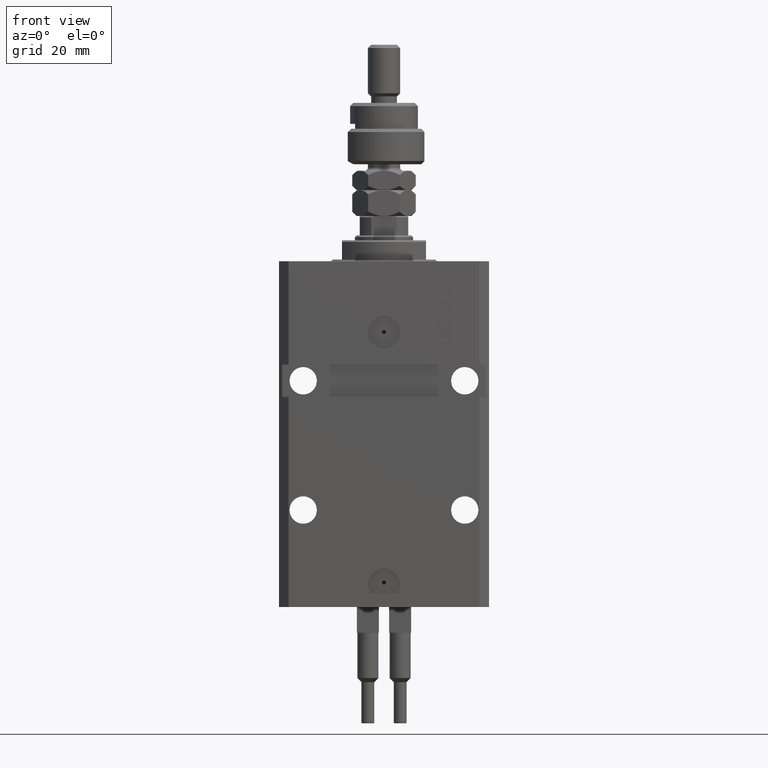
[diagram: clean part render]
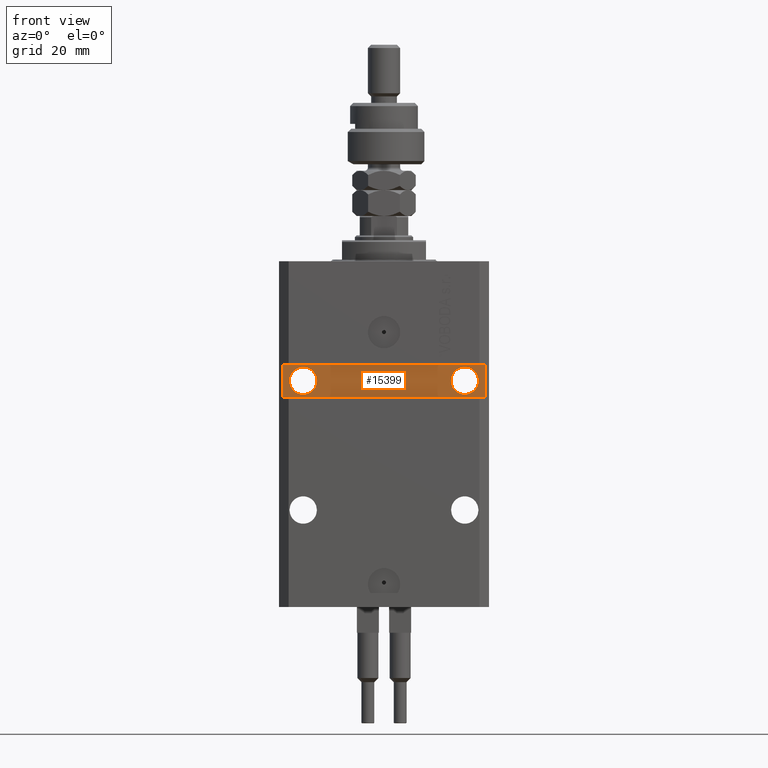
[diagram: same view with one face highlighted and labeled with its STEP entity id]
A machine part, front view. The second image highlights one B-rep face of the part: STEP entity #15399.
In plain terms, the highlighted planar face has unit normal (0, -1, 0).
Its self-contained STEP definition (entity closure, byte-faithful):
#304 = DIRECTION ( 'NONE',  ( -1.000000000000000000, -1.067522139062765303E-16, 1.067522139062765303E-16 ) ) ;
#1800 = EDGE_LOOP ( 'NONE', ( #17327, #4414, #46609, #29653 ) ) ;
#1856 = EDGE_LOOP ( 'NONE', ( #34884, #3573 ) ) ;
#1887 = CIRCLE ( 'NONE', #44165, 4.249999999993782751 ) ;
#3161 = CARTESIAN_POINT ( 'NONE',  ( -24.99999999999999289, -20.49999999999950262, -37.00000000000000000 ) ) ;
#3217 = FACE_OUTER_BOUND ( 'NONE', #1800, .T. ) ;
#3573 = ORIENTED_EDGE ( 'NONE', *, *, #8953, .F. ) ;
#4414 = ORIENTED_EDGE ( 'NONE', *, *, #47177, .F. ) ;
#5064 = VECTOR ( 'NONE', #304, 1000.000000000000000 ) ;
#5479 = DIRECTION ( 'NONE',  ( 1.000000000000000000, 1.067522139062765303E-16, 1.067522139062765303E-16 ) ) ;
#5668 = CIRCLE ( 'NONE', #28948, 4.249999999989050536 ) ;
#6777 = DIRECTION ( 'NONE',  ( 1.394545208792185644E-16, -1.000000000000000000, 1.232595164407830946E-32 ) ) ;
#7729 = VECTOR ( 'NONE', #14689, 1000.000000000000000 ) ;
#8891 = VECTOR ( 'NONE', #5479, 1000.000000000000000 ) ;
#8953 = EDGE_CURVE ( 'NONE', #21402, #10477, #21487, .T. ) ;
#9315 = CARTESIAN_POINT ( 'NONE',  ( -29.24999999999377920, -20.49999999999950262, -37.00000000000000000 ) ) ;
#9401 = VECTOR ( 'NONE', #46855, 1000.000000000000000 ) ;
#9983 = VERTEX_POINT ( 'NONE', #9986 ) ;
#9986 = CARTESIAN_POINT ( 'NONE',  ( 31.49999999999650413, -20.49999999999949196, -41.99999999999998579 ) ) ;
#10406 = CARTESIAN_POINT ( 'NONE',  ( 25.00000000000000711, -20.49999999999949551, -36.99999999999999289 ) ) ;
#10477 = VERTEX_POINT ( 'NONE', #33008 ) ;
#10516 = VERTEX_POINT ( 'NONE', #47184 ) ;
#12264 = DIRECTION ( 'NONE',  ( 1.101411730780568590E-16, -1.000000000000000000, 0.000000000000000000 ) ) ;
#12690 = AXIS2_PLACEMENT_3D ( 'NONE', #10406, #6777, #30677 ) ;
#13255 = LINE ( 'NONE', #40802, #5064 ) ;
#14603 = DIRECTION ( 'NONE',  ( 1.000000000000000000, 0.000000000000000000, 0.000000000000000000 ) ) ;
#14689 = DIRECTION ( 'NONE',  ( 0.000000000000000000, 0.000000000000000000, 1.000000000000000000 ) ) ;
#15176 = FACE_BOUND ( 'NONE', #1856, .T. ) ;
#15399 = ADVANCED_FACE ( 'NONE', ( #19842, #15176, #3217 ), #35684, .T. ) ;
#15828 = EDGE_CURVE ( 'NONE', #10516, #18350, #13255, .T. ) ;
#17327 = ORIENTED_EDGE ( 'NONE', *, *, #15828, .T. ) ;
#18350 = VERTEX_POINT ( 'NONE', #39751 ) ;
#19617 = LINE ( 'NONE', #50283, #7729 ) ;
#19842 = FACE_BOUND ( 'NONE', #29097, .T. ) ;
#20617 = EDGE_CURVE ( 'NONE', #10516, #9983, #26603, .T. ) ;
#20889 = CARTESIAN_POINT ( 'NONE',  ( 20.75000000001095657, -20.49999999999949551, -36.99999999999999289 ) ) ;
#21402 = VERTEX_POINT ( 'NONE', #9315 ) ;
#21487 = CIRCLE ( 'NONE', #50533, 4.249999999993782751 ) ;
#23413 = DIRECTION ( 'NONE',  ( 1.101411730780568590E-16, -1.000000000000000000, 0.000000000000000000 ) ) ;
#24710 = CARTESIAN_POINT ( 'NONE',  ( -32.49999999999650413, -20.49999999999949907, -41.99999999999999289 ) ) ;
#25974 = VERTEX_POINT ( 'NONE', #20889 ) ;
#26603 = LINE ( 'NONE', #41939, #9401 ) ;
#27116 = CARTESIAN_POINT ( 'NONE',  ( 2.166708070385810581E-15, -20.49999999999949907, 0.000000000000000000 ) ) ;
#27635 = DIRECTION ( 'NONE',  ( 1.067522139062765303E-16, -1.000000000000000000, 0.000000000000000000 ) ) ;
#28948 = AXIS2_PLACEMENT_3D ( 'NONE', #44004, #51035, #39857 ) ;
#29097 = EDGE_LOOP ( 'NONE', ( #41478, #50320 ) ) ;
#29653 = ORIENTED_EDGE ( 'NONE', *, *, #20617, .F. ) ;
#30677 = DIRECTION ( 'NONE',  ( 1.000000000000000000, 0.000000000000000000, 0.000000000000000000 ) ) ;
#30756 = EDGE_CURVE ( 'NONE', #48823, #9983, #36671, .T. ) ;
#30977 = CIRCLE ( 'NONE', #12690, 4.249999999989050536 ) ;
#32534 = CARTESIAN_POINT ( 'NONE',  ( -24.99999999999999289, -20.49999999999950262, -37.00000000000000000 ) ) ;
#33008 = CARTESIAN_POINT ( 'NONE',  ( -20.75000000000621014, -20.49999999999950262, -37.00000000000000000 ) ) ;
#34884 = ORIENTED_EDGE ( 'NONE', *, *, #45916, .F. ) ;
#35684 = PLANE ( 'NONE',  #39061 ) ;
#36671 = LINE ( 'NONE', #24710, #8891 ) ;
#37554 = EDGE_CURVE ( 'NONE', #25974, #42754, #5668, .T. ) ;
#39061 = AXIS2_PLACEMENT_3D ( 'NONE', #27116, #27635, #42961 ) ;
#39751 = CARTESIAN_POINT ( 'NONE',  ( -31.49999999999650413, -20.49999999999950262, -32.00000000000000000 ) ) ;
#39857 = DIRECTION ( 'NONE',  ( 1.000000000000000000, 0.000000000000000000, 0.000000000000000000 ) ) ;
#40464 = CARTESIAN_POINT ( 'NONE',  ( 29.24999999998905764, -20.49999999999949551, -36.99999999999999289 ) ) ;
#40778 = CARTESIAN_POINT ( 'NONE',  ( -31.49999999999650413, -20.49999999999949907, -41.99999999999999289 ) ) ;
#40802 = CARTESIAN_POINT ( 'NONE',  ( 32.49999999999650413, -20.49999999999949196, -32.00000000000000711 ) ) ;
#41478 = ORIENTED_EDGE ( 'NONE', *, *, #47578, .F. ) ;
#41939 = CARTESIAN_POINT ( 'NONE',  ( 31.49999999999651124, -20.49999999999949551, -107.0000000000000000 ) ) ;
#42754 = VERTEX_POINT ( 'NONE', #40464 ) ;
#42961 = DIRECTION ( 'NONE',  ( 1.000000000000000000, 1.067522139062765303E-16, 0.000000000000000000 ) ) ;
#44004 = CARTESIAN_POINT ( 'NONE',  ( 25.00000000000000711, -20.49999999999949551, -36.99999999999999289 ) ) ;
#44165 = AXIS2_PLACEMENT_3D ( 'NONE', #3161, #23413, #14603 ) ;
#44214 = DIRECTION ( 'NONE',  ( 1.000000000000000000, 0.000000000000000000, 0.000000000000000000 ) ) ;
#45916 = EDGE_CURVE ( 'NONE', #10477, #21402, #1887, .T. ) ;
#46609 = ORIENTED_EDGE ( 'NONE', *, *, #30756, .T. ) ;
#46855 = DIRECTION ( 'NONE',  ( 0.000000000000000000, 0.000000000000000000, -1.000000000000000000 ) ) ;
#47177 = EDGE_CURVE ( 'NONE', #48823, #18350, #19617, .T. ) ;
#47184 = CARTESIAN_POINT ( 'NONE',  ( 31.49999999999651124, -20.49999999999949196, -32.00000000000000711 ) ) ;
#47578 = EDGE_CURVE ( 'NONE', #42754, #25974, #30977, .T. ) ;
#48823 = VERTEX_POINT ( 'NONE', #40778 ) ;
#50283 = CARTESIAN_POINT ( 'NONE',  ( -31.49999999999650413, -20.49999999999950262, -107.0000000000000000 ) ) ;
#50320 = ORIENTED_EDGE ( 'NONE', *, *, #37554, .F. ) ;
#50533 = AXIS2_PLACEMENT_3D ( 'NONE', #32534, #12264, #44214 ) ;
#51035 = DIRECTION ( 'NONE',  ( 1.394545208792185644E-16, -1.000000000000000000, 1.232595164407830946E-32 ) ) ;